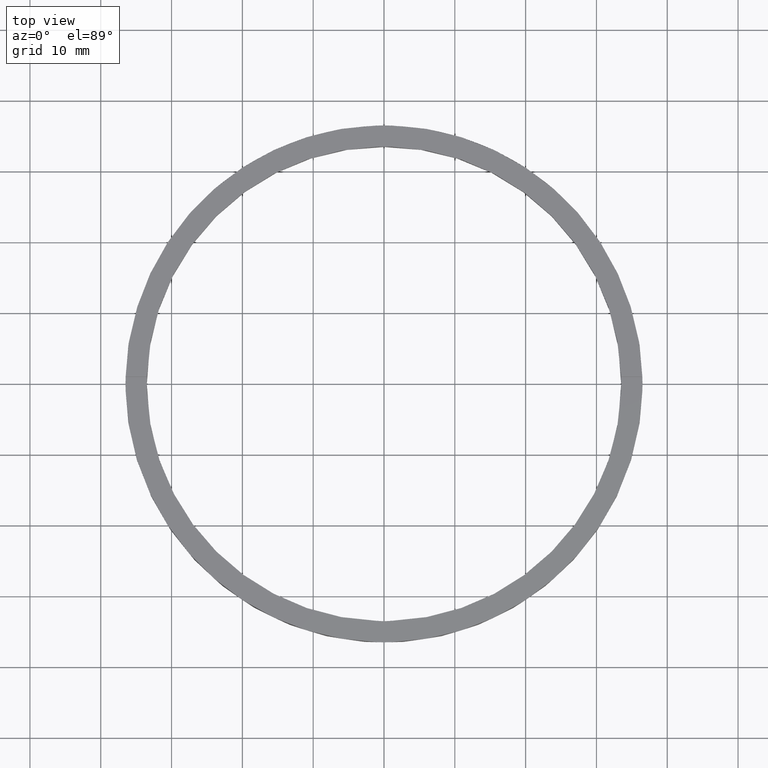
[diagram: clean part render]
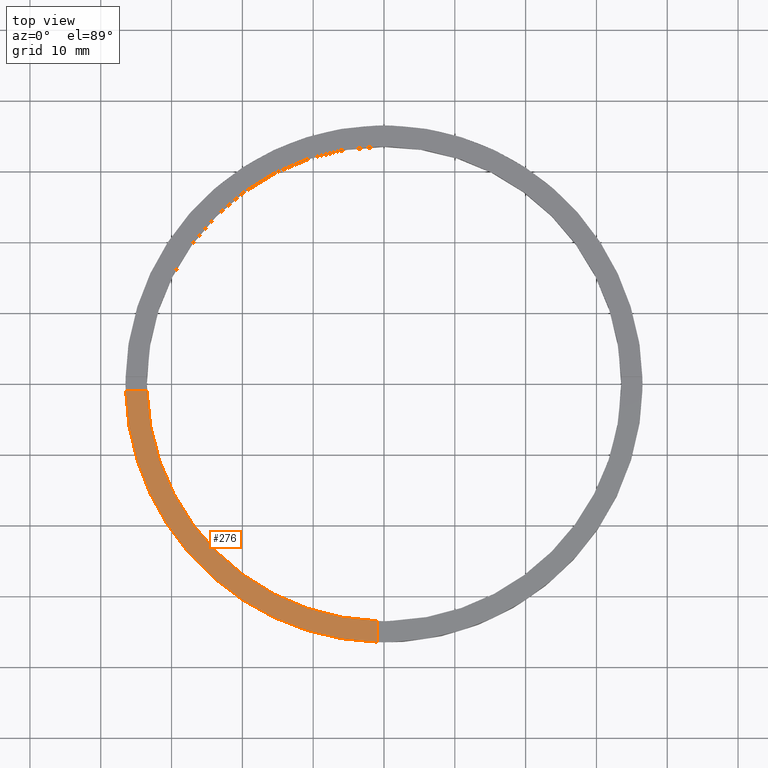
[diagram: same view with one face highlighted and labeled with its STEP entity id]
A machine part, top view. The second image highlights one B-rep face of the part: STEP entity #276.
In plain terms, the highlighted planar face has unit normal (0, 0, 1).
Its self-contained STEP definition (entity closure, byte-faithful):
#43 = CARTESIAN_POINT ( 'NONE',  ( 0.000000000000000000, 0.000000000000000000, 3.500000000000000000 ) ) ;
#45 = DIRECTION ( 'NONE',  ( 1.000000000000000000, 0.000000000000000000, -0.000000000000000000 ) ) ;
#84 = DIRECTION ( 'NONE',  ( 0.000000000000000000, 0.000000000000000000, 1.000000000000000000 ) ) ;
#91 = LINE ( 'NONE', #336, #354 ) ;
#98 = DIRECTION ( 'NONE',  ( 1.301042606982605074E-16, -1.000000000000000000, 0.000000000000000000 ) ) ;
#138 = DIRECTION ( 'NONE',  ( 0.000000000000000000, 0.000000000000000000, 1.000000000000000000 ) ) ;
#141 = CARTESIAN_POINT ( 'NONE',  ( -36.48629879831605649, -1.000000000000027311, 3.500000000000000000 ) ) ;
#161 = FACE_OUTER_BOUND ( 'NONE', #403, .T. ) ;
#200 = AXIS2_PLACEMENT_3D ( 'NONE', #281, #138, #45 ) ;
#210 = CARTESIAN_POINT ( 'NONE',  ( 0.000000000000000000, 0.000000000000000000, 3.500000000000000000 ) ) ;
#223 = PLANE ( 'NONE',  #200 ) ;
#232 = EDGE_CURVE ( 'NONE', #540, #279, #91, .T. ) ;
#240 = CARTESIAN_POINT ( 'NONE',  ( -1.000000000000160094, -36.48629879831604939, 3.500000000000000000 ) ) ;
#243 = ORIENTED_EDGE ( 'NONE', *, *, #766, .F. ) ;
#250 = CARTESIAN_POINT ( 'NONE',  ( -33.48507130050644065, -1.000000000000026645, 3.500000000000000000 ) ) ;
#266 = EDGE_CURVE ( 'NONE', #369, #424, #419, .T. ) ;
#276 = ADVANCED_FACE ( 'NONE', ( #161 ), #223, .T. ) ;
#279 = VERTEX_POINT ( 'NONE', #250 ) ;
#281 = CARTESIAN_POINT ( 'NONE',  ( 0.000000000000000000, 0.000000000000000000, 3.500000000000000000 ) ) ;
#301 = AXIS2_PLACEMENT_3D ( 'NONE', #210, #84, #506 ) ;
#316 = EDGE_CURVE ( 'NONE', #540, #424, #675, .T. ) ;
#336 = CARTESIAN_POINT ( 'NONE',  ( -26.50000000000018474, -1.000000000000025313, 3.500000000000000000 ) ) ;
#339 = CIRCLE ( 'NONE', #301, 33.50000000000000000 ) ;
#354 = VECTOR ( 'NONE', #525, 1000.000000000000000 ) ;
#369 = VERTEX_POINT ( 'NONE', #519 ) ;
#390 = ORIENTED_EDGE ( 'NONE', *, *, #316, .T. ) ;
#403 = EDGE_LOOP ( 'NONE', ( #703, #243, #768, #390 ) ) ;
#419 = LINE ( 'NONE', #653, #671 ) ;
#424 = VERTEX_POINT ( 'NONE', #240 ) ;
#506 = DIRECTION ( 'NONE',  ( 1.000000000000000000, 0.000000000000000000, 0.000000000000000000 ) ) ;
#519 = CARTESIAN_POINT ( 'NONE',  ( -1.000000000000160538, -33.48507130050644065, 3.500000000000000000 ) ) ;
#525 = DIRECTION ( 'NONE',  ( 1.000000000000000000, 1.951563910473907735E-16, -0.000000000000000000 ) ) ;
#540 = VERTEX_POINT ( 'NONE', #141 ) ;
#590 = DIRECTION ( 'NONE',  ( 1.000000000000000000, 0.000000000000000000, 0.000000000000000000 ) ) ;
#653 = CARTESIAN_POINT ( 'NONE',  ( -1.000000000000161426, -26.50000000000017764, 3.500000000000000000 ) ) ;
#671 = VECTOR ( 'NONE', #98, 1000.000000000000000 ) ;
#675 = CIRCLE ( 'NONE', #779, 36.50000000000000000 ) ;
#703 = ORIENTED_EDGE ( 'NONE', *, *, #266, .F. ) ;
#724 = DIRECTION ( 'NONE',  ( 0.000000000000000000, 0.000000000000000000, 1.000000000000000000 ) ) ;
#766 = EDGE_CURVE ( 'NONE', #279, #369, #339, .T. ) ;
#768 = ORIENTED_EDGE ( 'NONE', *, *, #232, .F. ) ;
#779 = AXIS2_PLACEMENT_3D ( 'NONE', #43, #724, #590 ) ;